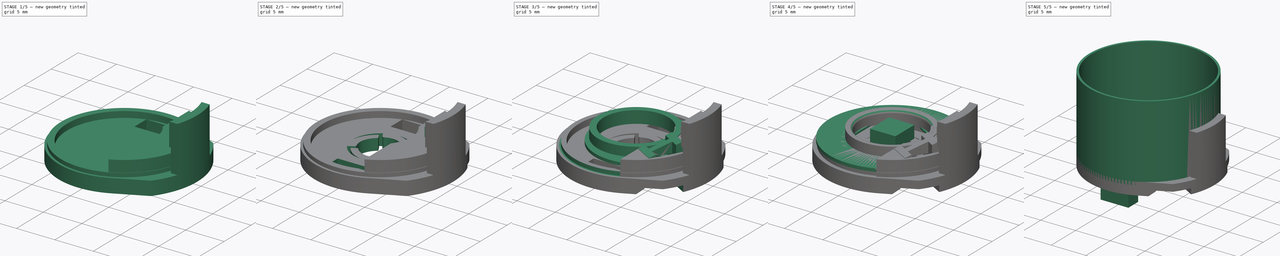
[diagram: build sequence overview — one tinted view per stage of 5, left to right]
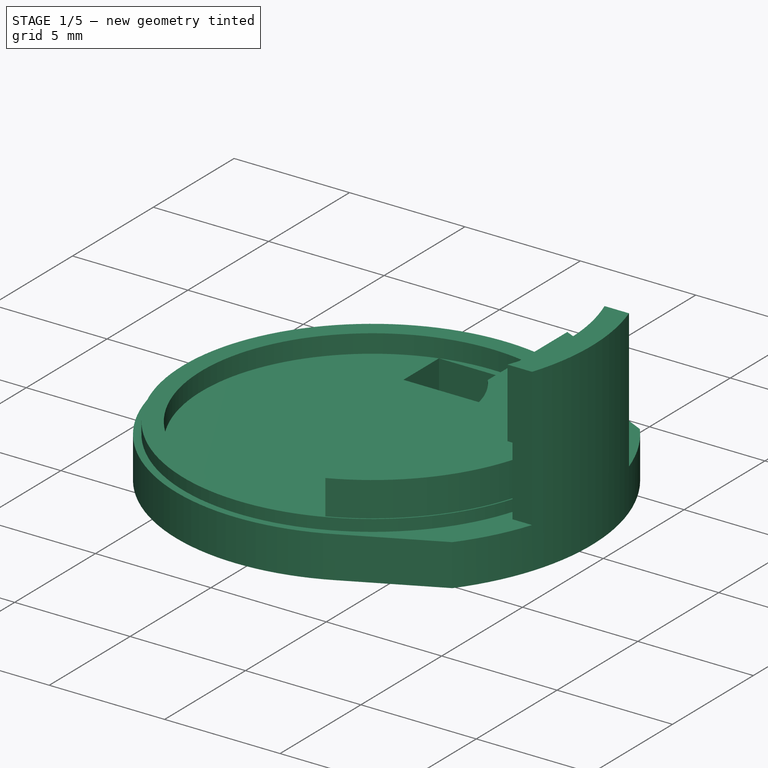
[diagram: stage 1 of 5 — iso view after this stage's code; geometry added in this stage tinted green]
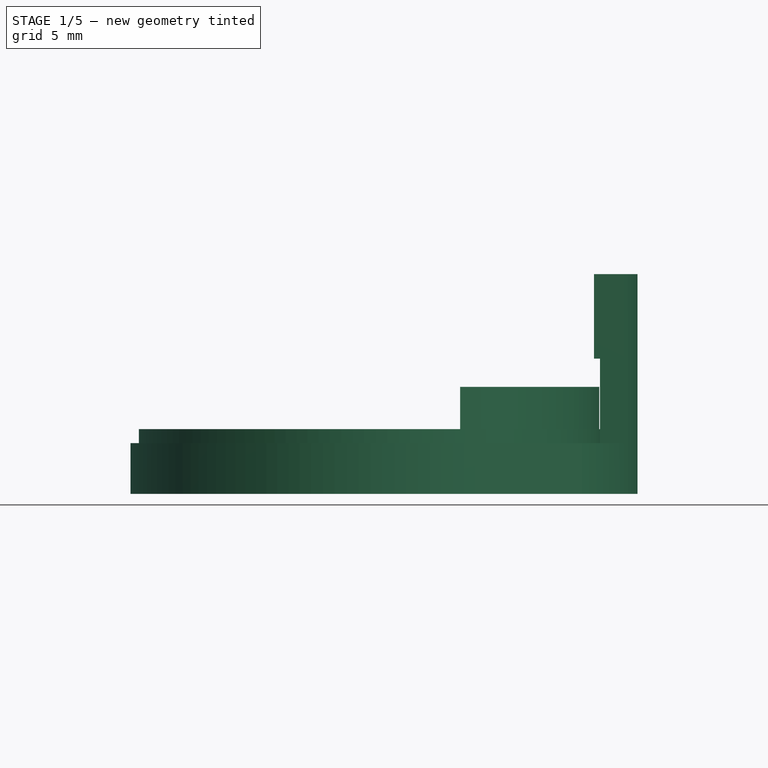
[diagram: stage 1 of 5 — front view after this stage's code; geometry added in this stage tinted green]
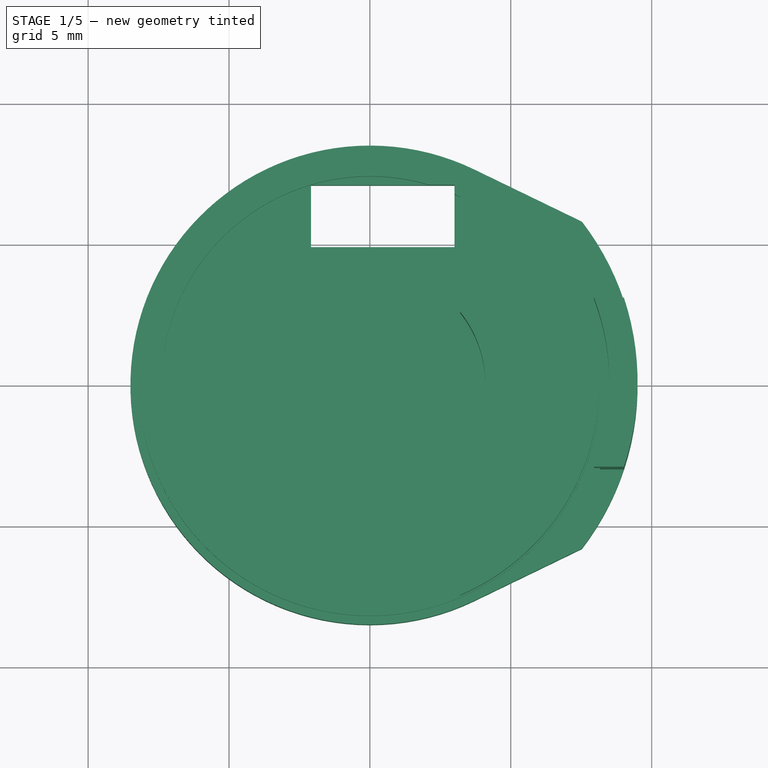
[diagram: stage 1 of 5 — top view after this stage's code; geometry added in this stage tinted green]
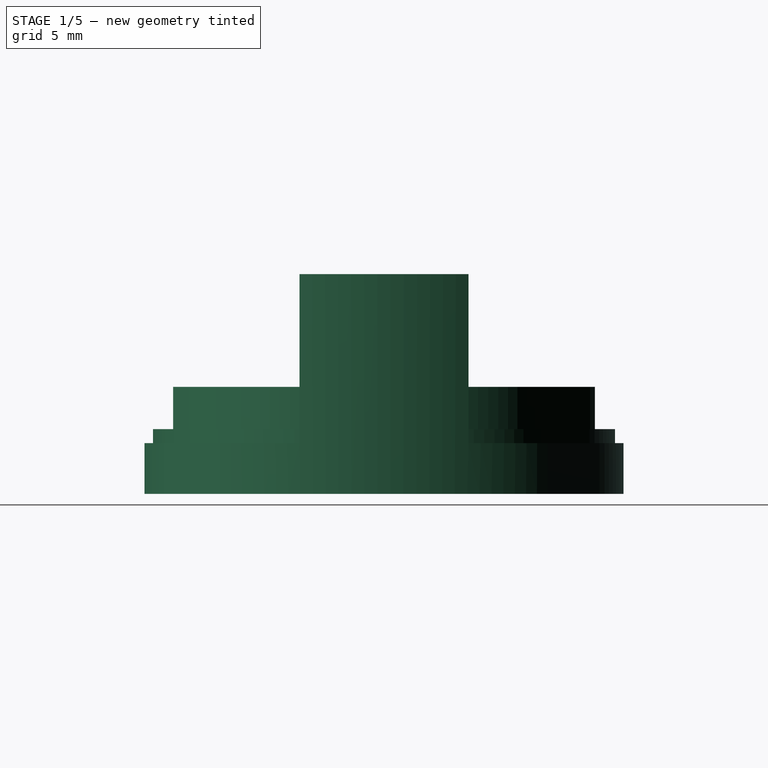
[diagram: stage 1 of 5 — right view after this stage's code; geometry added in this stage tinted green]
FCSTD DOCUMENT  (FreeCAD 0.21R)
Label: motor
License: All rights reserved
LicenseURL: http://en.wikipedia.org/wiki/All_rights_reserved
objects: Sketcher::SketchObject×28, PartDesign::Pad×19, PartDesign::Body×7, PartDesign::Pocket×6, PartDesign::Fillet×3, PartDesign::PolarPattern×2, PartDesign::Mirrored×2, PartDesign::Plane×1, PartDesign::SubtractiveLoft×1, PartDesign::MultiTransform×1
note: 99 computed .brp shape members not serialized (recipe doc carries the construction recipe); baked Part::Feature solids carry a one-line shape summary decoded from their .brp

FEATURE [Sketcher::SketchObject] Sketch051
  FullyConstrained = true
  MapMode = 5
  Support = -> [XY_Plane011]
  sketch-geometry (1):
    g0: Circle CenterX=0 CenterY=0 CenterZ=0 NormalX=0 NormalY=0 NormalZ=1 AngleXU=0 Radius=8.2
  constraints (2):
    c: Diameter(g0) = 16.4
    c: Coincident(g0,g-1)
FEATURE [Sketcher::SketchObject] Sketch063
  FullyConstrained = true
  MapMode = 5
  Support = -> [XY_Plane011]
  sketch-geometry (4):
    g0: LineSegment StartX=-2.09 StartY=7.1 StartZ=0 EndX=3 EndY=7.1 EndZ=0
    g1: LineSegment StartX=3 StartY=7.1 StartZ=0 EndX=3 EndY=4.9 EndZ=0
    g2: LineSegment StartX=3 StartY=4.9 StartZ=0 EndX=-2.09 EndY=4.9 EndZ=0
    g3: LineSegment StartX=-2.09 StartY=4.9 StartZ=0 EndX=-2.09 EndY=7.1 EndZ=0
  constraints (12):
    c: Coincident(g0,g1)
    c: Coincident(g1,g2)
    c: Coincident(g2,g3)
    c: Coincident(g3,g0)
    c: Horizontal(g0)
    c: Horizontal(g2)
    c: Vertical(g1)
    c: DistanceY(g-1,g1) = 4.9
    c: Distance(g1) = 2.2
    c: DistanceX(g-1,g1) = 3
    c: Distance(g0) = 5.09
    c: Vertical(g3)
FEATURE [Sketcher::SketchObject] Sketch064
  FullyConstrained = true
  MapMode = 5
  Support = -> [XY_Plane011]
  sketch-geometry (4):
    g0: ArcOfCircle CenterX=0 CenterY=0 CenterZ=0 NormalX=0 NormalY=0 NormalZ=1 AngleXU=0 Radius=4.1 StartAngle=5.60783 EndAngle=6.95854
    g1: LineSegment StartX=3.2 StartY=6.67788 StartZ=0 EndX=3.2 EndY=2.5632 EndZ=0
    g2: LineSegment StartX=3.2 StartY=-2.5632 StartZ=0 EndX=3.2 EndY=-6.67788 EndZ=0
    g3: ArcOfCircle CenterX=0 CenterY=0 CenterZ=0 NormalX=0 NormalY=0 NormalZ=1 AngleXU=0 Radius=7.405 StartAngle=1.12393 EndAngle=5.15925
  constraints (12):
    c: Coincident(g0,g-1)
    c: Coincident(g1,g0)
    c: Vertical(g1)
    c: Coincident(g2,g0)
    c: Vertical(g2)
    c: Coincident(g3,g0)
    c: Coincident(g3,g1)
    c: Coincident(g3,g2)
    c: Diameter(g3) = 14.81
    c: Radius(g0) = 4.1
    c: Equal(g1,g2)
    c: DistanceX(g0,g1) = 3.2
FEATURE [Sketcher::SketchObject] Sketch056
  ExternalGeometry = -> [Sketch064]
  FullyConstrained = true
  MapMode = 5
  Support = -> [XY_Plane011]
  sketch-geometry (2):
    g0: ArcOfCircle CenterX=0 CenterY=0 CenterZ=0 NormalX=0 NormalY=0 NormalZ=1 AngleXU=0 Radius=8.14 StartAngle=5.11641 EndAngle=7.44996
    g1: LineSegment StartX=3.2 StartY=-7.48462 StartZ=0 EndX=3.2 EndY=7.48462 EndZ=0
  constraints (6):
    c: Coincident(g0,g-1)
    c: Coincident(g1,g0)
    c: Vertical(g1)
    c: Radius(g0) = 8.14
    c: PointOnObject(g0,g-3)
    c: Coincident(g0,g1)
FEATURE [PartDesign::Pad] Pad029
  Direction = (1,1,1)
  Length = 2.3
  Length2 = 100
  Profile = -> Sketch051
  Refine = true
  Reversed = true
  Type = 0
FEATURE [PartDesign::Pad] Pad030
  BaseFeature = -> Pad029
  Direction = (1,1,1)
  Length = 1.5
  Length2 = 100
  Profile = -> Sketch056
  Refine = true
  Type = 0
FEATURE [Sketcher::SketchObject] Sketch060
  ExternalGeometry = -> [Sketch051]
  FullyConstrained = true
  MapMode = 5
  Placement = pos=(0,0,-2.3) rot=(1,0,0;3.14159rad)
  Support = -> [Pad030]
  expr: Constraints[6] = 17.4 + 0.8 * 2
  sketch-geometry (5):
    g0: ArcOfCircle CenterX=0 CenterY=0 CenterZ=0 NormalX=0 NormalY=0 NormalZ=1 AngleXU=0 Radius=8.5 StartAngle=1.11968 EndAngle=5.16351
    g1: Circle CenterX=0 CenterY=0 CenterZ=0 NormalX=0 NormalY=0 NormalZ=1 AngleXU=0 Radius=8.2
    g2: LineSegment StartX=3.70575 StartY=7.64967 StartZ=0 EndX=7.52396 EndY=5.8 EndZ=0
    g3: LineSegment StartX=3.70575 StartY=-7.64967 StartZ=0 EndX=7.52396 EndY=-5.8 EndZ=0
    g4: ArcOfCircle CenterX=0 CenterY=0 CenterZ=0 NormalX=0 NormalY=0 NormalZ=1 AngleXU=0 Radius=9.5 StartAngle=5.62646 EndAngle=6.93991
  constraints (12):
    c: Diameter(g0) = 17
    c: Coincident(g0,g-1)
    c: Coincident(g1,g0)
    c: Coincident(g4,g0)
    c: Coincident(g4,g2)
    c: Coincident(g4,g3)
    c: Diameter(g4) = 19
    c: Symmetric(g3,g2,g-1)
    c: Tangent(g2,g0) = 1.5708
    c: Tangent(g3,g0) = -1.5708
    c: Equal(g-3,g1)
    c: Distance(g2,g3) = 11.6
FEATURE [Sketcher::SketchObject] Sketch067
  FullyConstrained = true
  MapMode = 5
  Placement = pos=(0,0,1.5) rot=(0,0,1;0rad)
  Support = -> [Pad030]
  sketch-geometry (12):
    g0: LineSegment StartX=5.14554 StartY=4.435 StartZ=0 EndX=5.96827 EndY=4.91 EndZ=0
    g1: LineSegment StartX=5.96827 StartY=4.91 StartZ=0 EndX=5.56827 EndY=5.60282 EndZ=0
    g2: LineSegment StartX=5.56827 StartY=5.60282 StartZ=0 EndX=3.23 EndY=4.25282 EndZ=0
    g3: LineSegment StartX=3.23 StartY=4.25282 StartZ=0 EndX=3.63 EndY=3.56 EndZ=0
    g4: LineSegment StartX=3.63 StartY=3.56 StartZ=0 EndX=4.45272 EndY=4.035 EndZ=0
    g5: LineSegment StartX=4.45272 StartY=4.035 StartZ=0 EndX=5.65272 EndY=1.95654 EndZ=0
    g6: LineSegment StartX=5.65272 StartY=1.95654 StartZ=0 EndX=4.83 EndY=1.48154 EndZ=0
    g7: LineSegment StartX=4.83 StartY=1.48154 StartZ=0 EndX=5.23 EndY=0.788719 EndZ=0
    g8: LineSegment StartX=5.23 StartY=0.788719 StartZ=0 EndX=7.56827 EndY=2.13872 EndZ=0
    g9: LineSegment StartX=7.56827 StartY=2.13872 StartZ=0 EndX=7.16827 EndY=2.83154 EndZ=0
    g10: LineSegment StartX=7.16827 StartY=2.83154 StartZ=0 EndX=6.34554 EndY=2.35654 EndZ=0
    g11: LineSegment StartX=6.34554 StartY=2.35654 StartZ=0 EndX=5.14554 EndY=4.435 EndZ=0
  constraints (36):
    c: Coincident(g0,g1)
    c: Coincident(g1,g2)
    c: Coincident(g2,g3)
    c: Coincident(g3,g4)
    c: Coincident(g4,g5)
    c: Coincident(g5,g6)
    c: Coincident(g6,g7)
    c: Coincident(g7,g8)
    c: Coincident(g8,g9)
    c: Coincident(g9,g10)
    c: Coincident(g10,g11)
    c: Coincident(g11,g0)
    c: Perpendicular(g11,g10)
    c: Parallel(g10,g6)
    c: Parallel(g6,g4)
    c: Parallel(g4,g0)
    c: Parallel(g2,g8)
    c: Parallel(g8,g10)
    c: Parallel(g9,g11)
    c: Parallel(g11,g1)
    c: Parallel(g1,g3)
    c: Parallel(g3,g7)
    c: Equal(g0,g10)
    c: Equal(g1,g9)
    c: Equal(g6,g4)
    c: Equal(g10,g6)
    c: Distance(g8) = 2.7
    c: Distance(g9) = 0.8
    c: Distance(g11) = 2.4
    c: Angle(g8) = 0.523599
    c: Parallel(g11,g5)
    c: Equal(g3,g7)
    c: Equal(g3,g1)
    c: DistanceX(g3) = 3.63
    c: DistanceY(g3) = 3.56
    c: Distance(g0,g4) = 0.8
FEATURE [PartDesign::Pad] Pad031
  BaseFeature = -> Pad030
  Direction = (1,1,1)
  Length = 1.8
  Length2 = 100
  Profile = -> Sketch060
  Refine = true
  Reversed = true
  Type = 0
FEATURE [Sketcher::SketchObject] Sketch061
  ExternalGeometry = -> [Sketch060]
  FullyConstrained = true
  MapMode = 5
  Placement = pos=(0,0,-0.5) rot=(0,0,1;0rad)
  Support = -> [Pad031]
  sketch-geometry (4):
    g0: ArcOfCircle CenterX=0 CenterY=0 CenterZ=0 NormalX=0 NormalY=0 NormalZ=1 AngleXU=0 Radius=9.5 StartAngle=5.9619 EndAngle=6.60447
    g1: ArcOfCircle CenterX=0 CenterY=0 CenterZ=0 NormalX=0 NormalY=0 NormalZ=1 AngleXU=0 Radius=8.7 StartAngle=5.93113 EndAngle=6.63524
    g2: LineSegment StartX=8.16639 StartY=3 StartZ=0 EndX=9.01388 EndY=3 EndZ=0
    g3: LineSegment StartX=8.16639 StartY=-3 StartZ=0 EndX=9.01388 EndY=-3 EndZ=0
  constraints (12):
    c: Coincident(g1,g0)
    c: Coincident(g2,g1)
    c: Coincident(g2,g0)
    c: Horizontal(g2)
    c: Coincident(g3,g1)
    c: Coincident(g3,g0)
    c: Horizontal(g3)
    c: Diameter(g1) = 17.4
    c: Coincident(g0,g-1)
    c: Symmetric(g1,g1,g-1)
    c: Distance(g0,g0) = 6
    c: PointOnObject(g0,g-3)
FEATURE [PartDesign::Pad] Pad032
  BaseFeature = -> Pad031
  Direction = (0,0,1)
  Length = 3
  Length2 = 100
  Profile = -> Sketch061
  ReferenceAxis = -> Sketch061 [N_Axis]
  Refine = true
  Type = 0
FEATURE [Sketcher::SketchObject] Sketch065
  ExternalGeometry = -> [Sketch061]
  FullyConstrained = true
  MapMode = 5
  Placement = pos=(0,0,2.5) rot=(0,0,1;0rad)
  Support = -> [Pad032]
  sketch-geometry (4):
    g0: ArcOfCircle CenterX=0 CenterY=0 CenterZ=0 NormalX=0 NormalY=0 NormalZ=1 AngleXU=0 Radius=8.5 StartAngle=5.92247 EndAngle=6.6439
    g1: ArcOfCircle CenterX=-9e-16 CenterY=-1.6e-15 CenterZ=0 NormalX=0 NormalY=0 NormalZ=1 AngleXU=0 Radius=9.5 StartAngle=5.9619 EndAngle=6.60447
    g2: LineSegment StartX=7.95299 StartY=3 StartZ=0 EndX=9.01388 EndY=3 EndZ=0
    g3: LineSegment StartX=7.95299 StartY=-3 StartZ=0 EndX=9.01388 EndY=-3 EndZ=0
  constraints (11):
    c: Coincident(g0,g-1)
    c: Coincident(g2,g0)
    c: Coincident(g2,g1)
    c: Coincident(g3,g0)
    c: Coincident(g3,g1)
    c: Horizontal(g3)
    c: Horizontal(g2)
    c: Diameter(g0) = 17
    c: Coincident(g-3,g1)
    c: Coincident(g-3,g1)
    c: Equal(g-3,g1)
FEATURE [PartDesign::Pad] Pad033
  BaseFeature = -> Pad032
  Direction = (0,0,1)
  Length = 3
  Length2 = 100
  Profile = -> Sketch065
  ReferenceAxis = -> Sketch065 [N_Axis]
  Refine = true
  Type = 0
FEATURE [PartDesign::Pocket] Pocket009
  BaseFeature = -> Pad033
  Direction = (0,0,-1)
  Length = 5
  Length2 = 100
  Profile = -> Sketch063
  Refine = true
  Type = 1
FEATURE [PartDesign::Pocket] Pocket010
  BaseFeature = -> Pocket009
  Direction = (0,0,-1)
  Length = 0.8
  Length2 = 100
  Profile = -> Sketch064
  ReferenceAxis = -> Sketch064 [N_Axis]
  Refine = true
  Type = 4
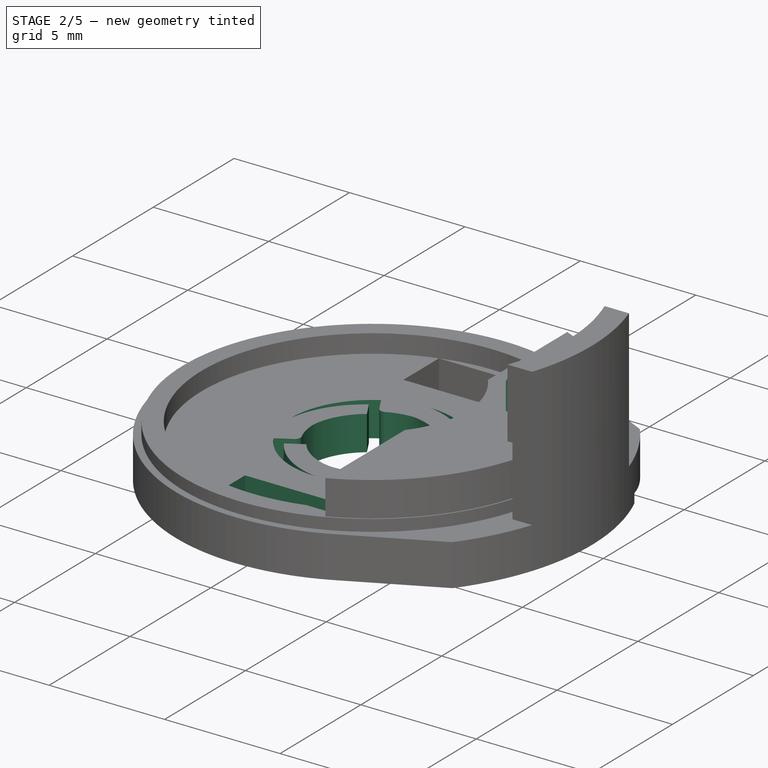
[diagram: stage 2 of 5 — iso view after this stage's code; geometry added in this stage tinted green]
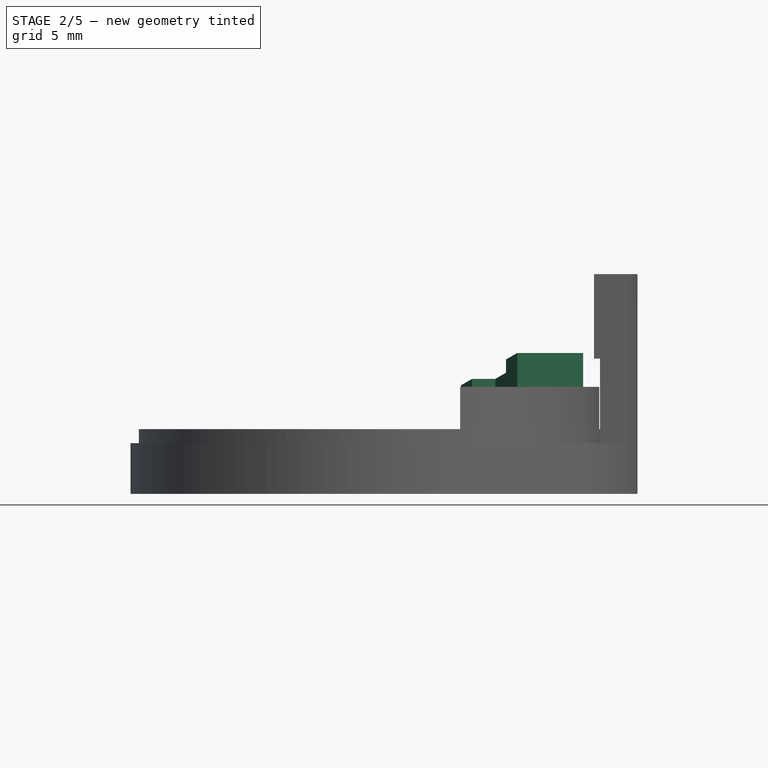
[diagram: stage 2 of 5 — front view after this stage's code; geometry added in this stage tinted green]
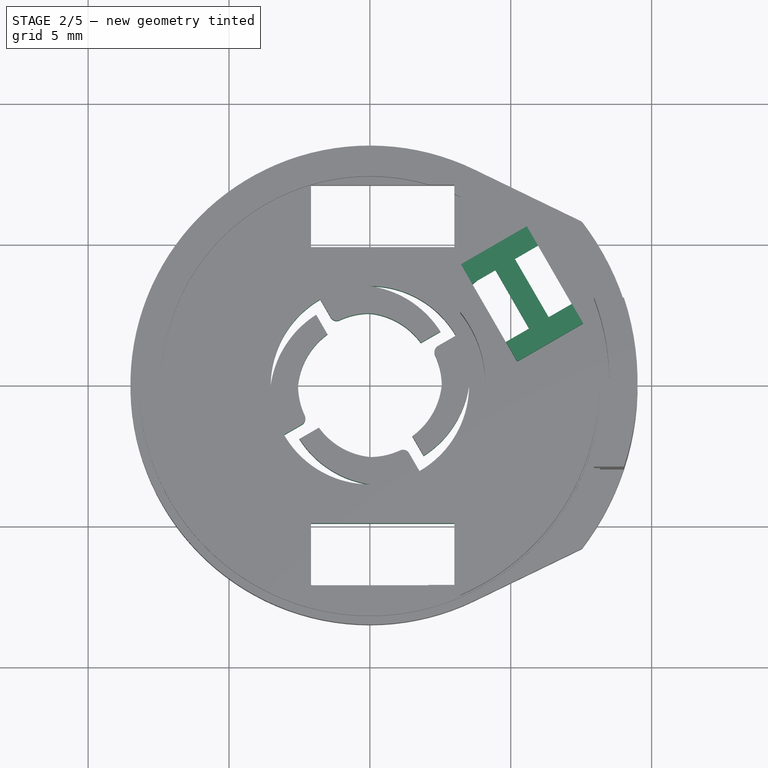
[diagram: stage 2 of 5 — top view after this stage's code; geometry added in this stage tinted green]
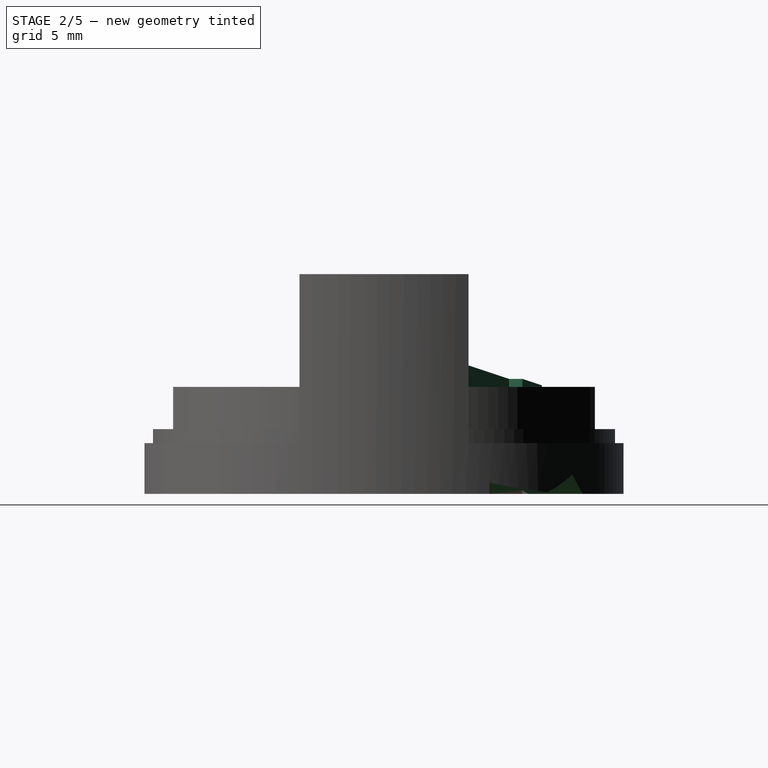
[diagram: stage 2 of 5 — right view after this stage's code; geometry added in this stage tinted green]
FEATURE [Sketcher::SketchObject] Sketch062
  FullyConstrained = true
  MapMode = 5
  Placement = pos=(0,0,-2.3) rot=(1,0,0;3.14159rad)
  Support = -> [Pocket010]
  expr: Constraints[27] = 5.1 / 2
  sketch-geometry (11):
    g0: ArcOfCircle CenterX=2e-16 CenterY=0 CenterZ=0 NormalX=0 NormalY=0 NormalZ=1 AngleXU=0 Radius=3.52 StartAngle=0 EndAngle=1.0472
    g1: ArcOfCircle CenterX=0 CenterY=-0.498801 CenterZ=0 NormalX=0 NormalY=0 NormalZ=1 AngleXU=0 Radius=3.55517 StartAngle=0.140768 EndAngle=1.00482
    g2: LineSegment StartX=2e-16 StartY=0 StartZ=0 EndX=1.76 EndY=3.04841 EndZ=0
    g3: LineSegment StartX=1.90641 StartY=2.502 StartZ=0 EndX=1.56 EndY=2.702 EndZ=0
    g4: LineSegment StartX=1.76 StartY=3.04841 StartZ=0 EndX=1.39441 EndY=2.41519 EndZ=0
    g5: LineSegment StartX=2e-16 StartY=0 StartZ=0 EndX=2e-16 EndY=2.55 EndZ=0
    g6: ArcOfCircle CenterX=2e-16 CenterY=0 CenterZ=0 NormalX=0 NormalY=0 NormalZ=1 AngleXU=0 Radius=2.55 StartAngle=1.1366 EndAngle=1.5708
    g7: ArcOfCircle CenterX=1.1779 CenterY=2.54019 CenterZ=0 NormalX=0 NormalY=0 NormalZ=1 AngleXU=0 Radius=0.25 StartAngle=4.27819 EndAngle=5.75959
    g8: LineSegment StartX=1.90641 StartY=2.502 StartZ=0 EndX=1.50641 EndY=1.80918 EndZ=0
    g9: ArcOfCircle CenterX=0 CenterY=-0.265341 CenterZ=0 NormalX=0 NormalY=0 NormalZ=1 AngleXU=0 Radius=2.56377 StartAngle=0.103682 EndAngle=0.942736
    g10: LineSegment StartX=2.55 StartY=1.70901e-11 StartZ=0 EndX=0 EndY=0 EndZ=0
  constraints (32):
    c: PointOnObject(g0,g-1)
    c: Coincident(g2,g0)
    c: Coincident(g2,g0)
    c: Coincident(g-1,g0)
    c: Coincident(g3,g1)
    c: PointOnObject(g3,g2)
    c: Perpendicular(g2,g3)
    c: Distance(g3) = 0.4
    c: Coincident(g4,g0)
    c: Coincident(g5,g0)
    c: Vertical(g5)
    c: Coincident(g6,g0)
    c: Coincident(g6,g5)
    c: Diameter(g6) = 5.1
    c: Tangent(g4,g7) = 1.5708
    c: Tangent(g6,g7) = 1.5708
    c: Diameter(g7) = 0.5
    c: Angle(g-1,g2) = 1.0472
    c: PointOnObject(g4,g2)
    c: Distance(g3,g0) = 0.4
    c: Coincident(g1,g0)
    c: Coincident(g8,g1)
    c: Parallel(g8,g2)
    c: Coincident(g9,g8)
    c: PointOnObject(g9,g-1)
    c: Coincident(g10,g9)
    c: Coincident(g10,g0)
    c: Distance(g10) = 2.55
    c: PointOnObject(g9,g-2)
    c: PointOnObject(g1,g-2)
    c: Distance(g8) = 0.8
    c: Radius(g0) = 3.52
FEATURE [PartDesign::Pocket] Pocket011
  BaseFeature = -> Pocket010
  Direction = (0,0,1)
  Length = 5
  Length2 = 100
  Profile = -> Sketch062
  Refine = true
  Type = 1
FEATURE [PartDesign::PolarPattern] PolarPattern001
  Angle = 360
  Axis = -> Sketch062 [N_Axis]
  BaseFeature = -> Pocket011
  Occurrences = 4
  Originals = -> [Pocket011]
  Refine = true
FEATURE [PartDesign::Mirrored] Mirrored008
  BaseFeature = -> PolarPattern001
  MirrorPlane = -> Sketch063 [H_Axis]
  Originals = -> [Pocket009]
  Refine = true
FEATURE [Sketcher::SketchObject] Sketch055
  ExternalGeometry = -> [Sketch067]
  FullyConstrained = true
  MapMode = 5
  Placement = pos=(0,0,-2.3) rot=(1,0,0;3.14159rad)
  Support = -> [Mirrored008]
  sketch-geometry (9):
    g0: LineSegment StartX=3.82132 StartY=-1.7 StartZ=0 EndX=7.78112 EndY=-5.6598 EndZ=0
    g1: LineSegment StartX=7.78112 StartY=-5.6598 StartZ=0 EndX=5.6598 EndY=-7.78112 EndZ=0
    g2: LineSegment StartX=5.6598 StartY=-7.78112 StartZ=0 EndX=1.7 EndY=-3.82132 EndZ=0
    g3: LineSegment StartX=1.7 StartY=-3.82132 StartZ=0 EndX=3.82132 EndY=-1.7 EndZ=0
    g4: LineSegment StartX=6.72046 StartY=-6.72046 StartZ=0 EndX=0 EndY=0 EndZ=0
    g5: LineSegment StartX=1.7 StartY=-3.82132 StartZ=0 EndX=4.32902 EndY=-1.1923 EndZ=0
    g6: LineSegment StartX=4.32902 StartY=-1.1923 StartZ=0 EndX=9.34984 EndY=-4.09107 EndZ=0
    g7: LineSegment StartX=9.34984 StartY=-4.09107 StartZ=0 EndX=5.6598 EndY=-7.78112 EndZ=0
    g8: LineSegment StartX=1.7 StartY=-3.82132 StartZ=0 EndX=5.6598 EndY=-7.78112 EndZ=0
  constraints (25):
    c: Coincident(g0,g1)
    c: Coincident(g1,g2)
    c: Coincident(g2,g3)
    c: Coincident(g3,g0)
    c: Perpendicular(g1,g0)
    c: Parallel(g0,g2)
    c: Parallel(g3,g1)
    c: PointOnObject(g4,g1)
    c: Coincident(g4,g-1)
    c: Symmetric(g0,g1,g4)
    c: Distance(g1) = 3
    c: Distance(g2) = 5.6
    c: Angle(g-1,g4) = -0.785398
    c: DistanceX(g-1,g2) = 1.7
    c: Coincident(g5,g2)
    c: Coincident(g6,g5)
    c: Coincident(g7,g6)
    c: Coincident(g8,g5)
    c: Coincident(g8,g7)
    c: Parallel(g2,g8)
    c: Parallel(g3,g5)
    c: Parallel(g6,g-3)
    c: PointOnObject(g-3,g6)
    c: PointOnObject(g0,g7)
    c: Parallel(g1,g7)
FEATURE [Sketcher::SketchObject] Sketch069
  ExternalGeometry = -> [Sketch067]
  FullyConstrained = true
  MapMode = 5
  Placement = pos=(0,0,1.5) rot=(0,0,1;0rad)
  Support = -> [Mirrored008]
  sketch-geometry (4):
    g0: LineSegment StartX=3.63 StartY=3.56 StartZ=0 EndX=5.96827 EndY=4.91 EndZ=0
    g1: LineSegment StartX=5.96827 StartY=4.91 StartZ=0 EndX=7.16827 EndY=2.83154 EndZ=0
    g2: LineSegment StartX=7.16827 StartY=2.83154 StartZ=0 EndX=4.83 EndY=1.48154 EndZ=0
    g3: LineSegment StartX=4.83 StartY=1.48154 StartZ=0 EndX=3.63 EndY=3.56 EndZ=0
  constraints (10):
    c: Coincident(g-3,g0)
    c: Coincident(g0,g1)
    c: Coincident(g1,g-4)
    c: Coincident(g1,g2)
    c: Coincident(g2,g3)
    c: Coincident(g3,g0)
    c: Perpendicular(g0,g1)
    c: Parallel(g0,g2)
    c: Parallel(g3,g1)
    c: PointOnObject(g-3,g0)
FEATURE [PartDesign::Plane] DatumPlane
  AttachmentOffset = pos=(0,0,-1) rot=(0,0,1;0rad)
  Length = 60
  MapMode = 5
  Placement = pos=(0,0,-1) rot=(0,0,1;0rad)
  ResizeMode = 0
  Support = -> [XY_Plane011]
  Width = 60
FEATURE [Sketcher::SketchObject] Sketch070
  ExternalGeometry = -> [Sketch069,Sketch055]
  FullyConstrained = false
  MapMode = 5
  Placement = pos=(0,0,-1) rot=(0,0,1;0rad)
  Support = -> [DatumPlane]
  sketch-geometry (4):
    g0: LineSegment StartX=3.63 StartY=3.56 StartZ=0 EndX=5.7687 EndY=5.6987 EndZ=0
    g1: LineSegment StartX=5.7687 StartY=5.6987 StartZ=0 EndX=7.36011 EndY=2.9423 EndZ=0
    g2: LineSegment StartX=7.36011 StartY=2.9423 StartZ=0 EndX=4.67543 EndY=1.3923 EndZ=0
    g3: LineSegment StartX=4.67543 StartY=1.3923 StartZ=0 EndX=3.63 EndY=3.56 EndZ=0
  constraints (5):
    c: Coincident(g0,g1)
    c: Coincident(g1,g2)
    c: Coincident(g2,g3)
    c: Coincident(g3,g0)
    c: Distance(g2) = 3.1
FEATURE [PartDesign::SubtractiveLoft] SubtractiveLoft
  BaseFeature = -> Mirrored008
  Closed = false
  Profile = -> Sketch055
  Refine = true
  Ruled = true
  Sections = -> [Sketch070,Sketch069]
FEATURE [PartDesign::Pad] Pad034
  BaseFeature = -> SubtractiveLoft
  Direction = (0,0,1)
  Length = 1.2
  Length2 = 100
  Profile = -> Sketch067
  Refine = true
  Type = 0
FEATURE [Sketcher::SketchObject] Sketch068
  ExternalGeometry = -> [Pad034]
  FullyConstrained = true
  MapMode = 5
  Placement = pos=(6.60229,3.81184,0) rot=(0.377964,0.654654,0.654654;2.41886rad)
  Support = -> [Pad034]
  sketch-geometry (3):
    g0: LineSegment StartX=-1.93195 StartY=2.7 StartZ=0 EndX=2.06805 EndY=2.7 EndZ=0
    g1: LineSegment StartX=2.06805 StartY=2.7 StartZ=0 EndX=2.06805 EndY=1.55302 EndZ=0
    g2: LineSegment StartX=2.06805 StartY=1.55302 StartZ=0 EndX=-1.93195 EndY=2.7 EndZ=0
  constraints (7):
    c: Coincident(g0,g1)
    c: Vertical(g1)
    c: Coincident(g1,g2)
    c: Coincident(g2,g0)
    c: Angle(g2,g0) = 0.279253
    c: Coincident(g-3,g0)
    c: Coincident(g-4,g0)
FEATURE [PartDesign::Pocket] Pocket012
  BaseFeature = -> Pad034
  Direction = (-0.866025,-0.5,0)
  Length = 5
  Length2 = 100
  Profile = -> Sketch068
  Refine = true
  Type = 1
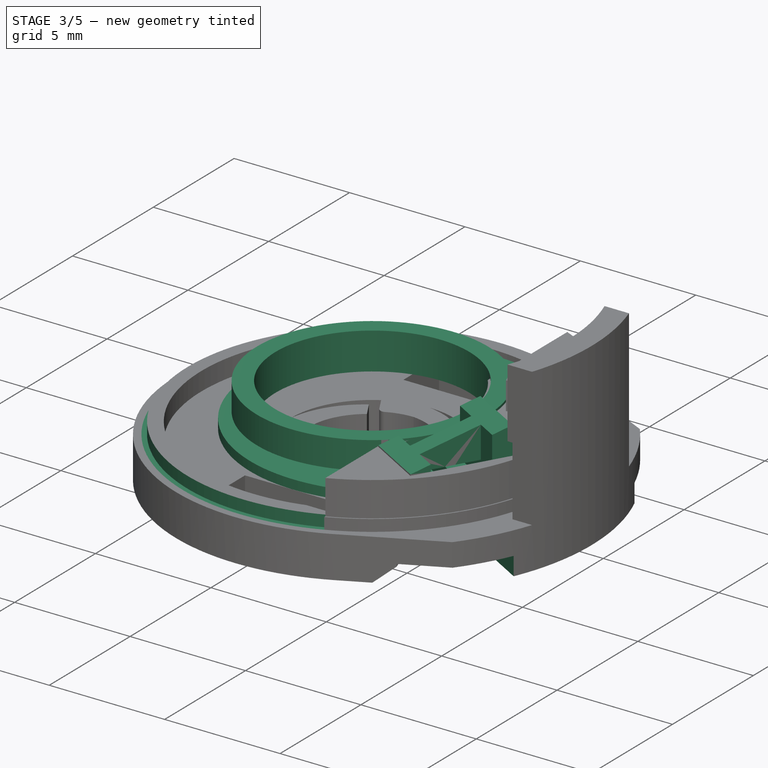
[diagram: stage 3 of 5 — iso view after this stage's code; geometry added in this stage tinted green]
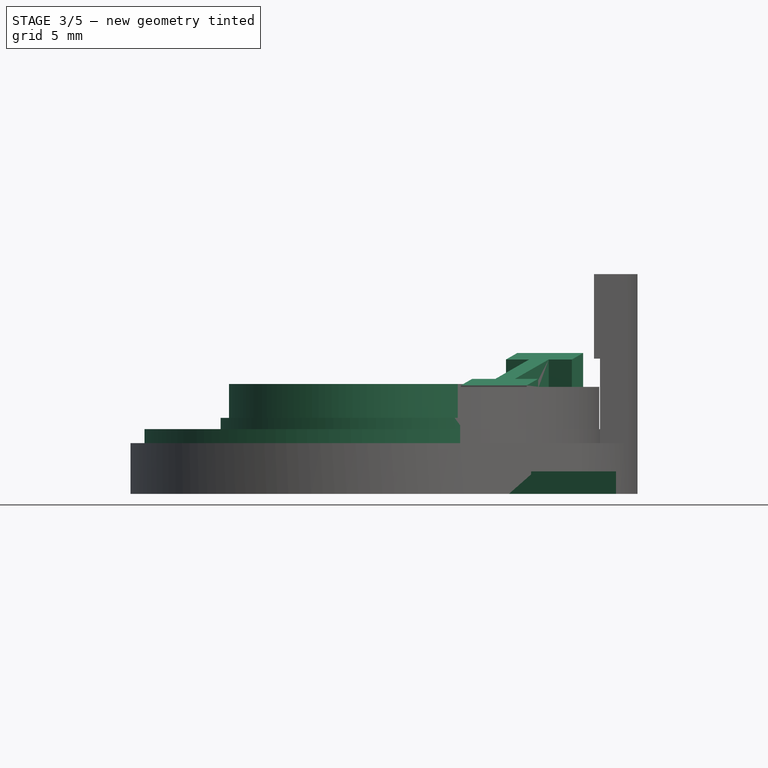
[diagram: stage 3 of 5 — front view after this stage's code; geometry added in this stage tinted green]
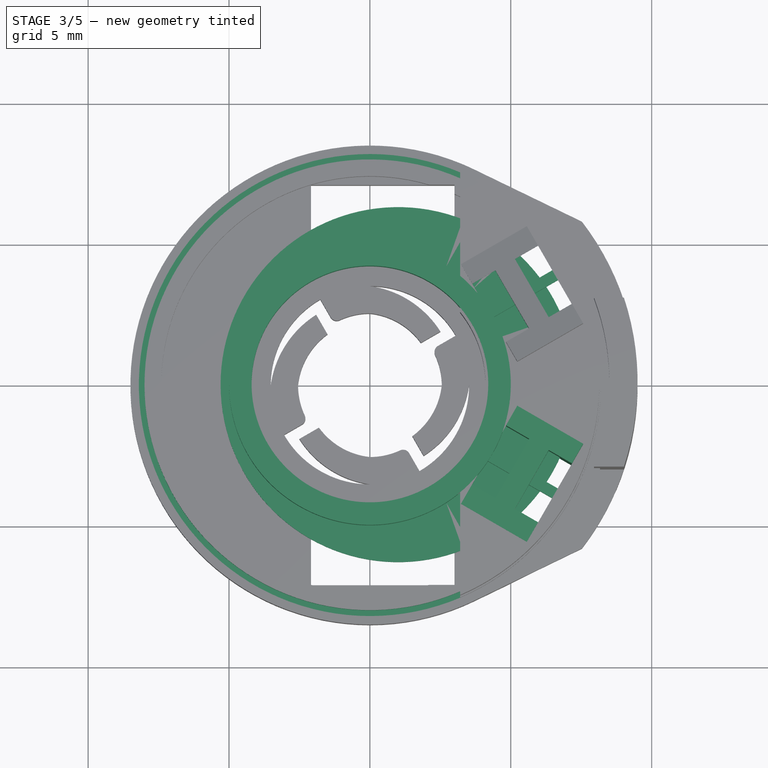
[diagram: stage 3 of 5 — top view after this stage's code; geometry added in this stage tinted green]
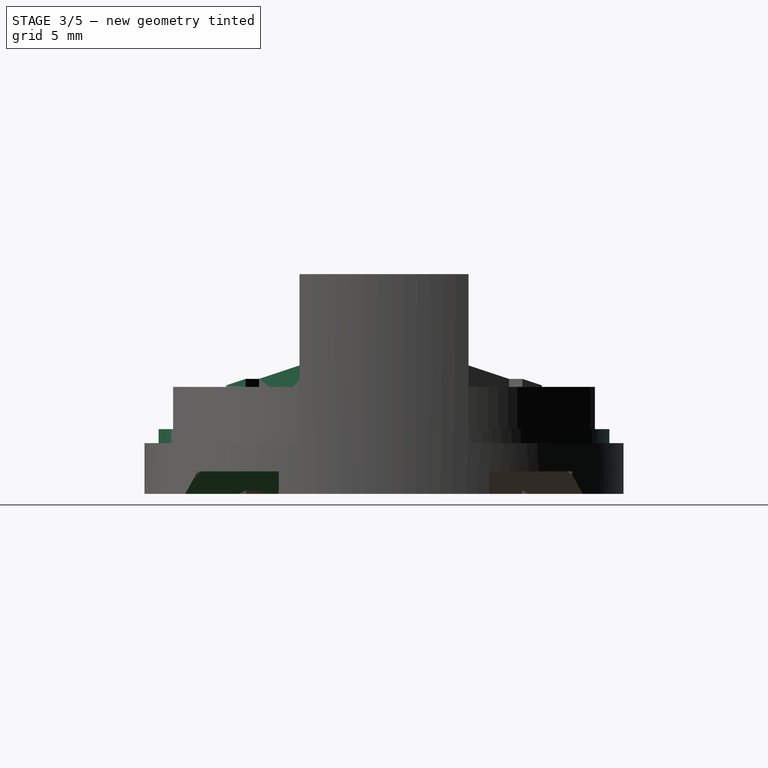
[diagram: stage 3 of 5 — right view after this stage's code; geometry added in this stage tinted green]
FEATURE [PartDesign::Body] Body007  label="sensor2"
  Group = -> [Sketch021,Pad012]
  Origin = -> Origin007
  Placement = pos=(5.41059,-3.18673,1.53188) rot=(0.460934,-0.123507,-0.878798;0.5919rad)
  Tip = -> Pad012
FEATURE [Sketcher::SketchObject] Sketch044
  FullyConstrained = true
  MapMode = 5
  Support = -> [XY_Plane009]
  expr: Constraints[6] = 7.3mm
  sketch-geometry (3):
    g0: Circle CenterX=0 CenterY=0 CenterZ=0 NormalX=0 NormalY=0 NormalZ=1 AngleXU=0 Radius=4.2
    g1: Circle CenterX=1 CenterY=0 CenterZ=0 NormalX=0 NormalY=0 NormalZ=1 AngleXU=0 Radius=6.3
    g2: GeomPoint X=7.3 Y=0 Z=0
  constraints (8):
    c: Coincident(g0,g-1)
    c: PointOnObject(g1,g-1)
    c: Diameter(g0) = 8.4
    c: Diameter(g1) = 12.6
    c: PointOnObject(g2,g1)
    c: PointOnObject(g2,g-1)
    c: Distance(g2,g0) = 7.3
    c: Distance(g0,g1) = 1
FEATURE [PartDesign::Pad] Pad022
  Direction = (0,0,1)
  Length = 0.4
  Length2 = 100
  Profile = -> Sketch044
  ReferenceAxis = -> Sketch044 [N_Axis]
  Refine = true
  Type = 0
FEATURE [PartDesign::Body] Body010  label="EncoderDiscBlack"
  Group = -> [Sketch048,Pad026]
  Origin = -> Origin010
  Placement = pos=(0,0,6) rot=(0,0,1;2.67035rad)
  Tip = -> Pad026
FEATURE [Sketcher::SketchObject] Sketch049
  ExternalGeometry = -> [Sketch044]
  FullyConstrained = true
  MapMode = 5
  Placement = pos=(0,0,0.4) rot=(0,0,1;0rad)
  Support = -> [Pad022]
  sketch-geometry (3):
    g0: Circle CenterX=0 CenterY=0 CenterZ=0 NormalX=0 NormalY=0 NormalZ=1 AngleXU=0 Radius=4.2
    g1: Circle CenterX=0 CenterY=0 CenterZ=0 NormalX=0 NormalY=0 NormalZ=1 AngleXU=0 Radius=5
    g2: LineSegment StartX=4.2 StartY=0 StartZ=0 EndX=5 EndY=0 EndZ=0
  constraints (8):
    c: Coincident(g0,g-1)
    c: Coincident(g1,g0)
    c: Equal(g0,g-3)
    c: PointOnObject(g2,g0)
    c: PointOnObject(g2,g1)
    c: PointOnObject(g2,g-1)
    c: Horizontal(g2)
    c: Distance(g2) = 0.8
FEATURE [PartDesign::Pad] Pad027
  BaseFeature = -> Pad022
  Direction = (0,0,1)
  Length = 1.2
  Length2 = 100
  Profile = -> Sketch049
  ReferenceAxis = -> Sketch049 [N_Axis]
  Refine = true
  Type = 0
FEATURE [Sketcher::SketchObject] Sketch071
  ExternalGeometry = -> [Pocket012]
  FullyConstrained = true
  MapMode = 5
  Placement = pos=(0,0,1.5) rot=(1,0,0;3.14159rad)
  Support = -> [Pocket012]
  sketch-geometry (4):
    g0: LineSegment StartX=5.75272 StartY=-1.78333 StartZ=0 EndX=4.35272 EndY=-4.20821 EndZ=0
    g1: LineSegment StartX=4.35272 StartY=-4.20821 StartZ=0 EndX=5.04554 EndY=-4.60821 EndZ=0
    g2: LineSegment StartX=5.04554 StartY=-4.60821 StartZ=0 EndX=6.44554 EndY=-2.18333 EndZ=0
    g3: LineSegment StartX=6.44554 StartY=-2.18333 StartZ=0 EndX=5.75272 EndY=-1.78333 EndZ=0
  constraints (12):
    c: Coincident(g0,g1)
    c: Coincident(g1,g2)
    c: Coincident(g2,g3)
    c: Coincident(g3,g0)
    c: PointOnObject(g-3,g0)
    c: PointOnObject(g-3,g0)
    c: PointOnObject(g-4,g2)
    c: PointOnObject(g-4,g2)
    c: Perpendicular(g2,g3)
    c: Perpendicular(g2,g1)
    c: Distance(g-4,g2) = 0.2
    c: Distance(g-4,g1) = 0.2
FEATURE [PartDesign::Pad] Pad035
  BaseFeature = -> Pocket012
  Direction = (0,0,-1)
  Length = 0.4
  Length2 = 100
  Profile = -> Sketch071
  Refine = true
  Type = 0
FEATURE [Sketcher::SketchObject] Sketch072
  ExternalGeometry = -> [Sketch067]
  FullyConstrained = true
  MapMode = 5
  Placement = pos=(0,0,1.1) rot=(1,0,0;3.14159rad)
  Support = -> [Pad035]
  sketch-geometry (5):
    g0: LineSegment StartX=4.2001 StartY=-2.27256 StartZ=0 EndX=6.79817 EndY=-3.77256 EndZ=0
    g1: LineSegment StartX=6.79817 StartY=-3.77256 StartZ=0 EndX=6.59817 EndY=-4.11897 EndZ=0
    g2: LineSegment StartX=6.59817 StartY=-4.11897 StartZ=0 EndX=4.0001 EndY=-2.61897 EndZ=0
    g3: LineSegment StartX=4.0001 StartY=-2.61897 StartZ=0 EndX=4.2001 EndY=-2.27256 EndZ=0
    g4: LineSegment StartX=4.2001 StartY=-2.27256 StartZ=0 EndX=5.15272 EndY=-2.82256 EndZ=0
  constraints (15):
    c: Coincident(g0,g1)
    c: Coincident(g1,g2)
    c: Coincident(g2,g3)
    c: Coincident(g3,g0)
    c: Parallel(g2,g0)
    c: Parallel(g1,g3)
    c: Parallel(g3,g-3)
    c: Coincident(g4,g0)
    c: PointOnObject(g4,g-3)
    c: Parallel(g4,g0)
    c: Perpendicular(g3,g0)
    c: Distance(g3) = 0.4
    c: Distance(g4,g-3) = 1
    c: Distance(g4) = 1.1
    c: Distance(g2) = 3
FEATURE [PartDesign::Pad] Pad036
  BaseFeature = -> Pad035
  Direction = (0,0,-1)
  Length = 0.6
  Length2 = 100
  Profile = -> Sketch072
  Refine = true
  Type = 0
FEATURE [Sketcher::SketchObject] Sketch073
  ExternalGeometry = -> [Pad036]
  FullyConstrained = true
  MapMode = 5
  Placement = pos=(0,0,-2.3) rot=(1,0,0;3.14159rad)
  Support = -> [Pad036]
  sketch-geometry (4):
    g0: LineSegment StartX=7.36011 StartY=-2.9423 StartZ=0 EndX=9.43857 EndY=-4.1423 EndZ=0
    g1: LineSegment StartX=9.43857 StartY=-4.1423 StartZ=0 EndX=5.64336 EndY=-8.09543 EndZ=0
    g2: LineSegment StartX=5.64336 StartY=-8.09543 StartZ=0 EndX=5.7687 EndY=-5.6987 EndZ=0
    g3: LineSegment StartX=5.7687 StartY=-5.6987 StartZ=0 EndX=7.36011 EndY=-2.9423 EndZ=0
  constraints (10):
    c: Coincident(g0,g1)
    c: Coincident(g1,g2)
    c: Coincident(g2,g3)
    c: Coincident(g3,g0)
    c: PointOnObject(g-4,g2)
    c: Coincident(g0,g-6)
    c: PointOnObject(g-5,g0)
    c: Coincident(g2,g-3)
    c: Equal(g0,g2)
    c: Distance(g0) = 2.4
FEATURE [PartDesign::Pocket] Pocket013
  BaseFeature = -> Pad036
  Direction = (0,0,1)
  Length = 0.8
  Length2 = 100
  Profile = -> Sketch073
  Refine = true
  Type = 0
FEATURE [PartDesign::Mirrored] Mirrored009
  MirrorPlane = -> Sketch055 [H_Axis]
  Refine = true
FEATURE [PartDesign::MultiTransform] MultiTransform001
  BaseFeature = -> Pocket013
  Originals = -> [SubtractiveLoft,Pad034,Pocket012,Pad035,Pad036,Pocket013]
  Refine = true
  Transformations = -> [Mirrored009]
FEATURE [PartDesign::Body] Body009  label="EncoderDiscWhite"
  Group = -> [Sketch044,Pad022,Sketch049,Pad027,Sketch074,Pad037,PolarPattern,Fillet002]
  Origin = -> Origin009
  Placement = pos=(0,0,4) rot=(0,0,1;2.67035rad)
  Tip = -> Fillet002
FEATURE [Sketcher::SketchObject] Sketch075
  FullyConstrained = true
  MapMode = 5
  Support = -> [XY_Plane011]
  sketch-geometry (4):
    g0: ArcOfCircle CenterX=0 CenterY=0 CenterZ=0 NormalX=0 NormalY=0 NormalZ=1 AngleXU=0 Radius=8 StartAngle=1.15928 EndAngle=5.12391
    g1: ArcOfCircle CenterX=0 CenterY=0 CenterZ=0 NormalX=0 NormalY=0 NormalZ=1 AngleXU=0 Radius=9 StartAngle=1.20729 EndAngle=5.0759
    g2: LineSegment StartX=3.2 StartY=8.4119 StartZ=0 EndX=3.2 EndY=7.33212 EndZ=0
    g3: LineSegment StartX=3.2 StartY=-7.33212 StartZ=0 EndX=3.2 EndY=-8.4119 EndZ=0
  constraints (12):
    c: Coincident(g0,g-1)
    c: Coincident(g1,g0)
    c: Coincident(g2,g1)
    c: Coincident(g2,g0)
    c: Coincident(g3,g0)
    c: Coincident(g3,g1)
    c: Vertical(g3)
    c: Vertical(g2)
    c: Diameter(g0) = 16
    c: DistanceX(g0,g0) = 3.2
    c: Diameter(g1) = 18
    c: Vertical(g0,g0)
FEATURE [PartDesign::Pocket] Pocket
  BaseFeature = -> MultiTransform001
  Direction = (0,0,-1)
  Length = 0.5
  Length2 = 5
  Profile = -> Sketch075
  ReferenceAxis = -> Sketch075 [N_Axis]
  Type = 0
FEATURE [PartDesign::Body] Body011  label="MotorLid"
  Group = -> [Sketch051,Sketch055,Sketch056,Sketch060,Sketch061,Sketch062,Sketch063,Sketch064,Sketch065,Sketch067,Sketch068,Pad029,Pad030,Pad031,Pad032,Pad033,Pocket009,Pocket010,Pocket011,PolarPattern001,Mirrored008,Sketch069,DatumPlane,Sketch070,SubtractiveLoft,Pad034,Pocket012,Sketch071,Pad035,Sketch072,Pad036,Sketch073,Pocket013,MultiTransform001,Mirrored009,Sketch075,Pocket]
  Origin = -> Origin011
  Placement = pos=(0,0,-0.6) rot=(0,0,1;0rad)
  Tip = -> Pocket
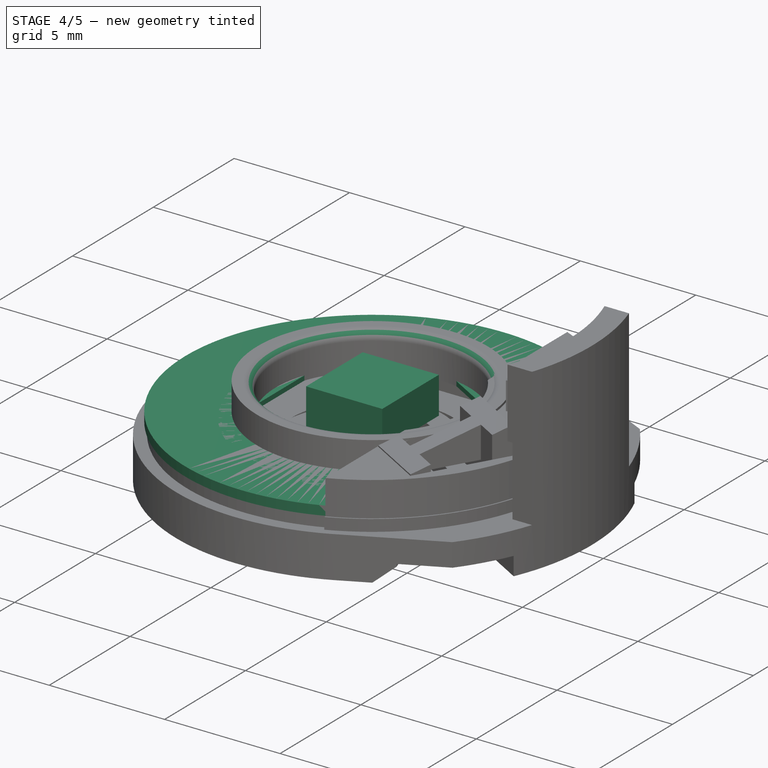
[diagram: stage 4 of 5 — iso view after this stage's code; geometry added in this stage tinted green]
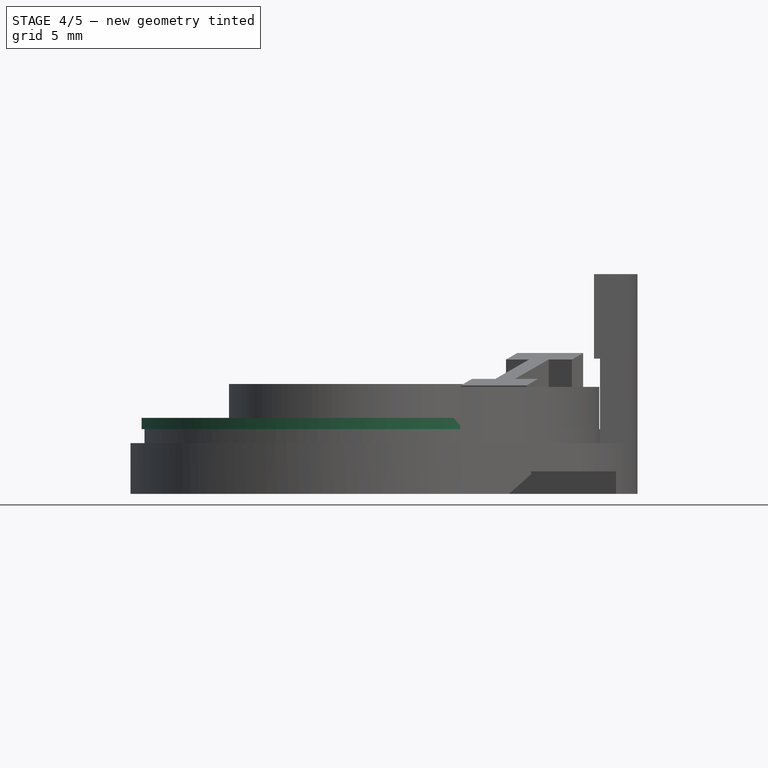
[diagram: stage 4 of 5 — front view after this stage's code; geometry added in this stage tinted green]
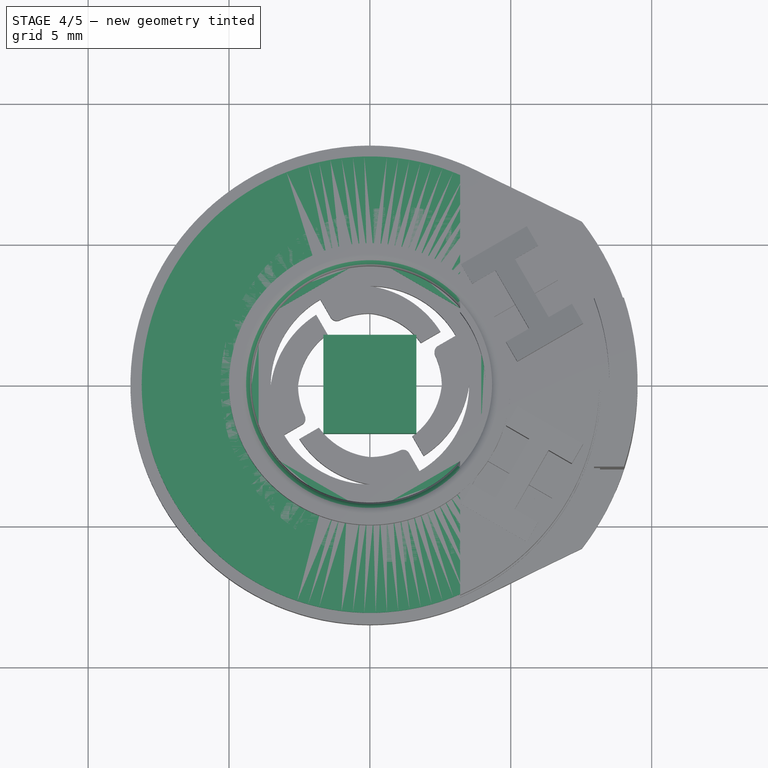
[diagram: stage 4 of 5 — top view after this stage's code; geometry added in this stage tinted green]
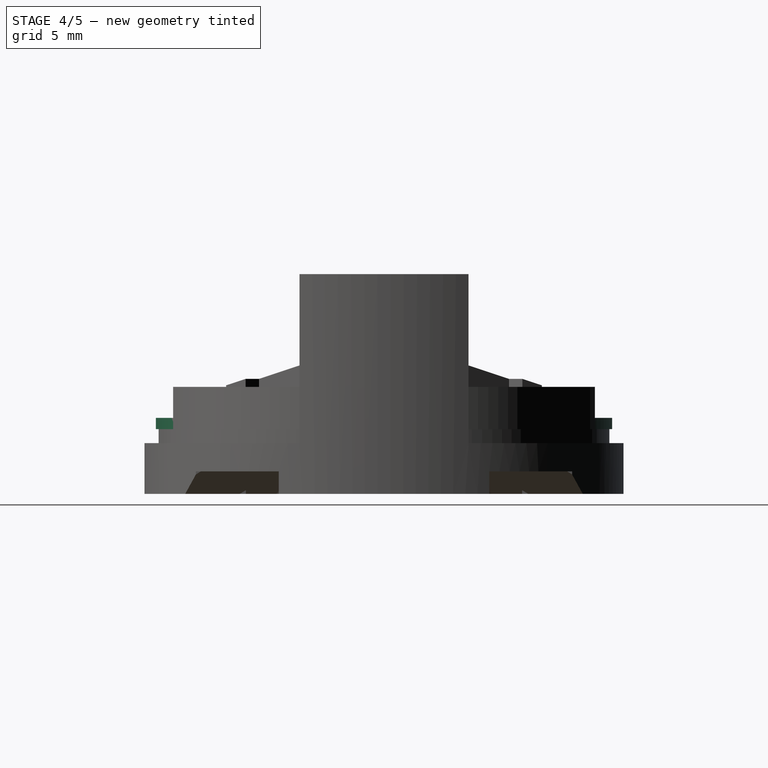
[diagram: stage 4 of 5 — right view after this stage's code; geometry added in this stage tinted green]
FEATURE [PartDesign::Body] Body  label="motorPart1"
  Group = -> [Sketch,Pad,Sketch017,Pad008,Fillet,Sketch018,Pad009,Fillet001,Sketch019,Pad010]
  Origin = -> Origin
  Tip = -> Pad010
FEATURE [Sketcher::SketchObject] Sketch020
  FullyConstrained = false
  MapMode = 5
  Support = -> [XY_Plane006]
  sketch-geometry (4):
    g0: LineSegment StartX=-1.65 StartY=1.75 StartZ=0 EndX=1.65 EndY=1.75 EndZ=0
    g1: LineSegment StartX=1.65 StartY=1.75 StartZ=0 EndX=1.65 EndY=-1.75 EndZ=0
    g2: LineSegment StartX=1.65 StartY=-1.75 StartZ=0 EndX=-1.65 EndY=-1.75 EndZ=0
    g3: LineSegment StartX=-1.65 StartY=-1.75 StartZ=0 EndX=-1.65 EndY=1.75 EndZ=0
  constraints (11):
    c: Coincident(g0,g1)
    c: Coincident(g1,g2)
    c: Coincident(g2,g3)
    c: Coincident(g3,g0)
    c: Horizontal(g0)
    c: Horizontal(g2)
    c: Vertical(g1)
    c: Vertical(g3)
    c: Symmetric(g0,g1,g-1)
    c: Distance(g0) = 3.3
    c: Distance(g1) = 3.5
FEATURE [PartDesign::Pad] Pad011
  Direction = (1,1,1)
  Length = 1.6
  Length2 = 100
  Profile = -> Sketch020
  Refine = true
  Type = 0
FEATURE [PartDesign::Body] Body006  label="sensor1"
  Group = -> [Sketch020,Pad011]
  Origin = -> Origin006
  Placement = pos=(5.41059,3.18199,1.53188) rot=(-0.460934,-0.123507,0.878798;0.5919rad)
  Tip = -> Pad011
FEATURE [Sketcher::SketchObject] Sketch021
  FullyConstrained = false
  MapMode = 5
  Support = -> [XY_Plane007]
  sketch-geometry (4):
    g0: LineSegment StartX=-1.65 StartY=1.75 StartZ=0 EndX=1.65 EndY=1.75 EndZ=0
    g1: LineSegment StartX=1.65 StartY=1.75 StartZ=0 EndX=1.65 EndY=-1.75 EndZ=0
    g2: LineSegment StartX=1.65 StartY=-1.75 StartZ=0 EndX=-1.65 EndY=-1.75 EndZ=0
    g3: LineSegment StartX=-1.65 StartY=-1.75 StartZ=0 EndX=-1.65 EndY=1.75 EndZ=0
  constraints (11):
    c: Coincident(g0,g1)
    c: Coincident(g1,g2)
    c: Coincident(g2,g3)
    c: Coincident(g3,g0)
    c: Horizontal(g0)
    c: Horizontal(g2)
    c: Vertical(g1)
    c: Vertical(g3)
    c: Symmetric(g0,g1,g-1)
    c: Distance(g0) = 3.3
    c: Distance(g1) = 3.5
FEATURE [PartDesign::Pad] Pad012
  Direction = (1,1,1)
  Length = 1.6
  Length2 = 100
  Profile = -> Sketch021
  Refine = true
  Type = 0
FEATURE [Sketcher::SketchObject] Sketch048
  FullyConstrained = true
  MapMode = 5
  Support = -> [XY_Plane010]
  sketch-geometry (2):
    g0: Circle CenterX=0 CenterY=0 CenterZ=0 NormalX=0 NormalY=0 NormalZ=1 AngleXU=0 Radius=4.8
    g1: Circle CenterX=0 CenterY=0 CenterZ=0 NormalX=0 NormalY=0 NormalZ=1 AngleXU=0 Radius=8.1
  constraints (4):
    c: Coincident(g0,g-1)
    c: Coincident(g1,g0)
    c: Diameter(g1) = 16.2
    c: Radius(g0) = 4.8
FEATURE [PartDesign::Pad] Pad026
  Direction = (1,1,1)
  Length = 0.4
  Length2 = 100
  Profile = -> Sketch048
  Refine = true
  Type = 0
FEATURE [Sketcher::SketchObject] Sketch074
  ExternalGeometry = -> [Pad027]
  FullyConstrained = true
  MapMode = 5
  Placement = pos=(0,0,0) rot=(1,0,0;3.14159rad)
  Support = -> [Pad027]
  sketch-geometry (3):
    g0: ArcOfCircle CenterX=0 CenterY=0 CenterZ=0 NormalX=0 NormalY=0 NormalZ=1 AngleXU=0 Radius=4.2 StartAngle=5.93642 EndAngle=6.62995
    g1: LineSegment StartX=3.95 StartY=1.42741 StartZ=0 EndX=3.95 EndY=-1.42741 EndZ=0
    g2: LineSegment StartX=3.95 StartY=0 StartZ=0 EndX=4.2 EndY=0 EndZ=0
  constraints (10):
    c: Coincident(g1,g0)
    c: Coincident(g1,g0)
    c: Vertical(g1)
    c: PointOnObject(g2,g1)
    c: PointOnObject(g2,g0)
    c: PointOnObject(g2,g-1)
    c: Horizontal(g2)
    c: Distance(g2) = 0.25
    c: Equal(g0,g-3)
    c: Coincident(g-3,g0)
FEATURE [PartDesign::Pad] Pad037
  BaseFeature = -> Pad027
  Direction = (0,0,-1)
  Length = 0.2
  Length2 = 10
  Profile = -> Sketch074
  ReferenceAxis = -> Sketch074 [N_Axis]
  Reversed = true
  Type = 0
FEATURE [PartDesign::PolarPattern] PolarPattern
  Angle = 360
  Axis = -> Sketch074 [N_Axis]
  BaseFeature = -> Pad037
  Occurrences = 6
  Originals = -> [Pad037]
FEATURE [PartDesign::Fillet] Fillet002
  Base = -> PolarPattern [Edge37]
  BaseFeature = -> PolarPattern
  Radius = 0.4
  SupportTransform = false
  UseAllEdges = false
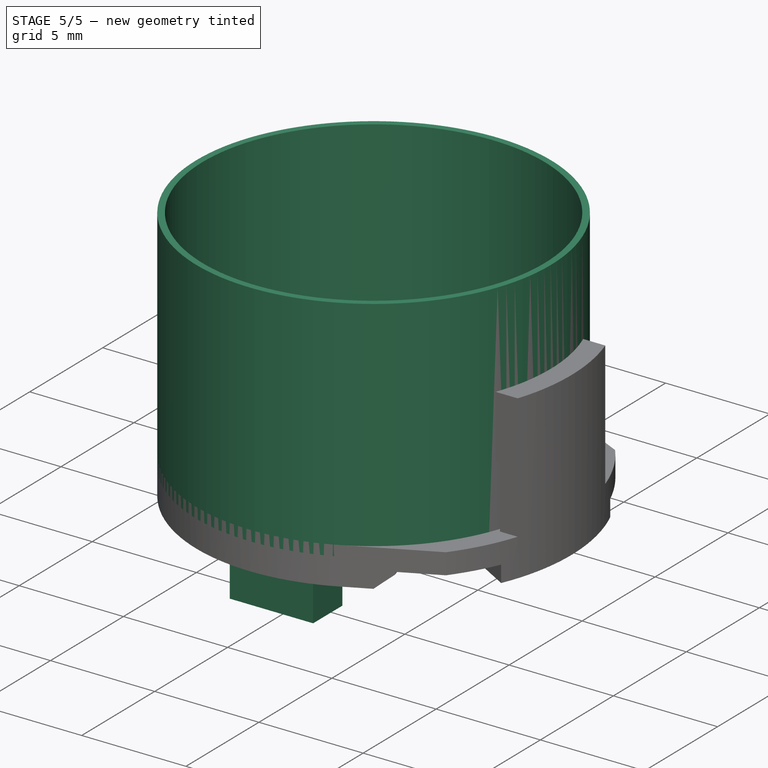
[diagram: stage 5 of 5 — iso view after this stage's code; geometry added in this stage tinted green]
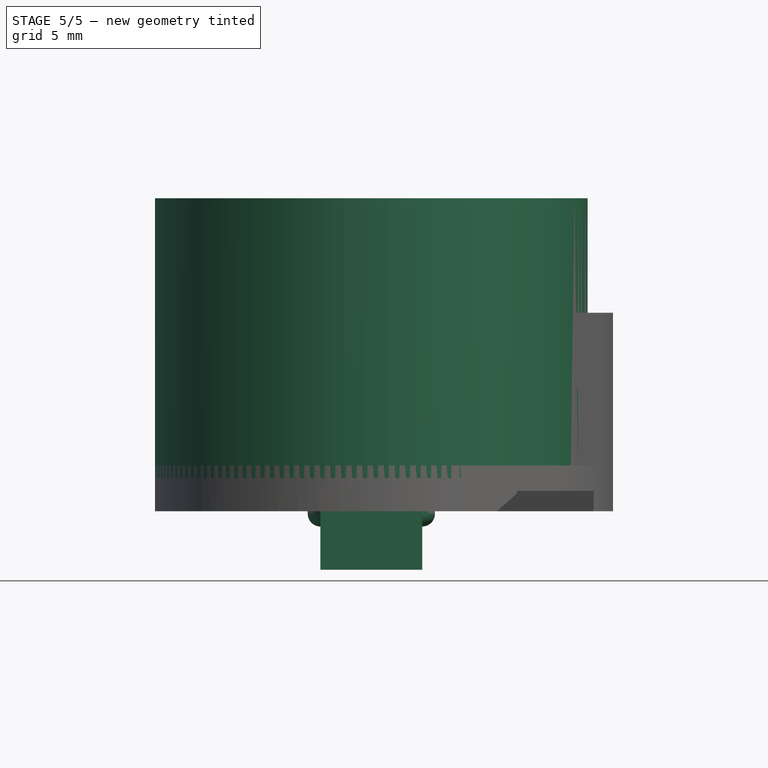
[diagram: stage 5 of 5 — front view after this stage's code; geometry added in this stage tinted green]
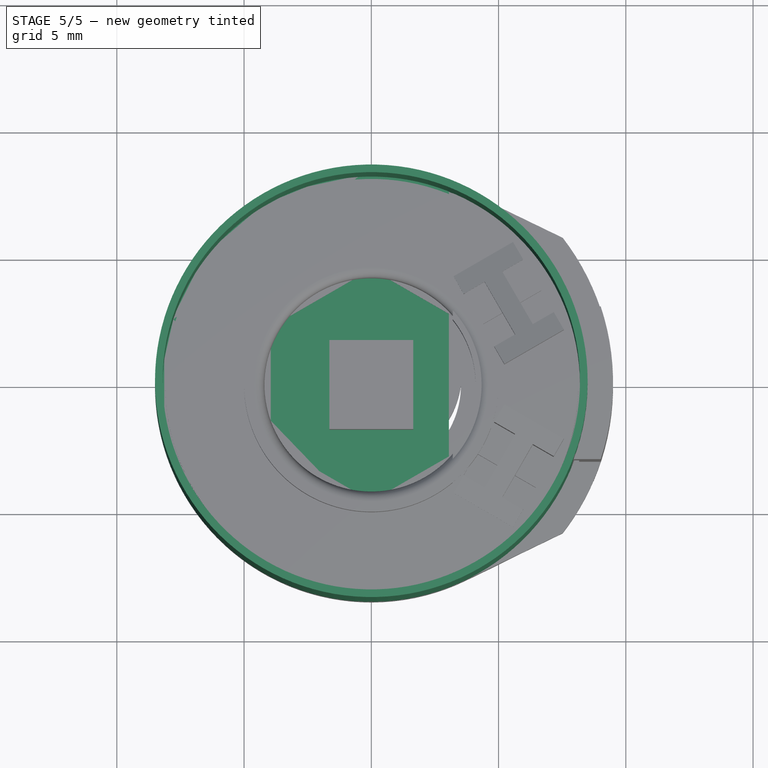
[diagram: stage 5 of 5 — top view after this stage's code; geometry added in this stage tinted green]
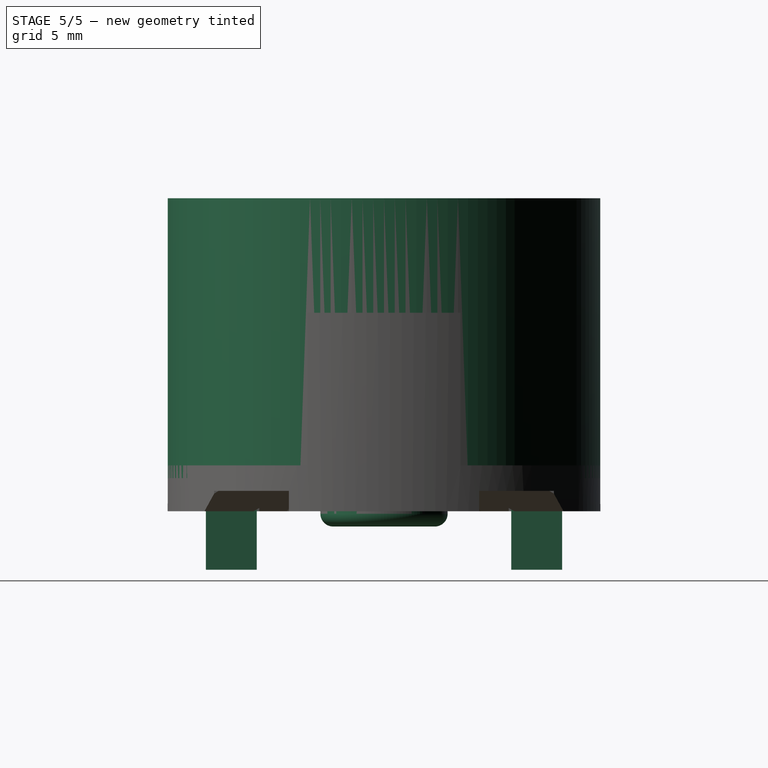
[diagram: stage 5 of 5 — right view after this stage's code; geometry added in this stage tinted green]
FEATURE [Sketcher::SketchObject] Sketch
  FullyConstrained = false
  MapMode = 5
  Support = -> [XY_Plane]
  sketch-geometry (3):
    g0: ArcOfCircle CenterX=0 CenterY=0 CenterZ=0 NormalX=0 NormalY=0 NormalZ=1 AngleXU=0 Radius=8.2 StartAngle=1.18969 EndAngle=5.0935
    g1: LineSegment StartX=3.05 StartY=7.61167 StartZ=0 EndX=3.05 EndY=-7.61167 EndZ=0
    g2: LineSegment StartX=3.05 StartY=0 StartZ=0 EndX=-8.2 EndY=0 EndZ=0
  constraints (10):
    c: Coincident(g0,g-1)
    c: Coincident(g1,g0)
    c: Coincident(g1,g0)
    c: Vertical(g1)
    c: Diameter(g0) = 16.4
    c: PointOnObject(g2,g1)
    c: PointOnObject(g2,g0)
    c: Horizontal(g2)
    c: PointOnObject(g2,g-1)
    c: Distance(g2) = 11.25
FEATURE [PartDesign::Pad] Pad
  Direction = (1,1,1)
  Length = 0.6
  Length2 = 100
  Profile = -> Sketch
  Refine = true
  Reversed = true
  Type = 0
FEATURE [Sketcher::SketchObject] Sketch016
  FullyConstrained = false
  MapMode = 5
  Support = -> [XY_Plane005]
  sketch-geometry (2):
    g0: Circle CenterX=0 CenterY=0 CenterZ=0 NormalX=0 NormalY=0 NormalZ=1 AngleXU=0 Radius=8.2
    g1: Circle CenterX=0 CenterY=0 CenterZ=0 NormalX=0 NormalY=0 NormalZ=1 AngleXU=0 Radius=8.5
  constraints (4):
    c: Coincident(g0,g-1)
    c: Coincident(g1,g0)
    c: Diameter(g0) = 16.4
    c: Diameter(g1) = 17
FEATURE [PartDesign::Pad] Pad007
  Direction = (1,1,1)
  Length = 10
  Length2 = 1
  Profile = -> Sketch016
  Refine = true
  Type = 4
FEATURE [PartDesign::Body] Body005  label="motorPart2"
  Group = -> [Sketch016,Pad007]
  Origin = -> Origin005
  Tip = -> Pad007
FEATURE [Sketcher::SketchObject] Sketch017
  ExternalGeometry = -> [Pad]
  FullyConstrained = false
  MapMode = 5
  Placement = pos=(0,0,-0.6) rot=(1,0,0;3.14159rad)
  Support = -> [Pad]
  sketch-geometry (2):
    g0: ArcOfCircle CenterX=0 CenterY=0 CenterZ=0 NormalX=0 NormalY=0 NormalZ=1 AngleXU=0 Radius=4.5 StartAngle=0.82606 EndAngle=5.45713
    g1: LineSegment StartX=3.05 StartY=3.3087 StartZ=0 EndX=3.05 EndY=-3.3087 EndZ=0
  constraints (6):
    c: Coincident(g0,g-1)
    c: Coincident(g1,g0)
    c: Coincident(g1,g0)
    c: Vertical(g1)
    c: PointOnObject(g0,g-3)
    c: Diameter(g0) = 9
FEATURE [PartDesign::Pad] Pad008
  BaseFeature = -> Pad
  Direction = (1,1,1)
  Length = 0.6
  Length2 = 100
  Profile = -> Sketch017
  Refine = true
  Type = 0
FEATURE [PartDesign::Fillet] Fillet
  Base = -> Pad008 [Edge11]
  BaseFeature = -> Pad008
  Radius = 0.5
  Refine = true
  SupportTransform = false
  UseAllEdges = false
FEATURE [Sketcher::SketchObject] Sketch018
  FullyConstrained = false
  MapMode = 5
  Placement = pos=(0,0,-1.2) rot=(1,0,0;3.14159rad)
  Support = -> [Fillet]
  sketch-geometry (1):
    g0: Circle CenterX=0 CenterY=0 CenterZ=0 NormalX=0 NormalY=0 NormalZ=1 AngleXU=0 Radius=2.5
  constraints (2):
    c: Coincident(g0,g-1)
    c: Diameter(g0) = 5
FEATURE [PartDesign::Pad] Pad009
  BaseFeature = -> Fillet
  Direction = (1,1,1)
  Length = 1
  Length2 = 100
  Offset = 2.3
  Profile = -> Sketch018
  Refine = true
  Type = 3
  UpToFace = -> Fillet [Face4]
FEATURE [PartDesign::Fillet] Fillet001
  Base = -> Pad009 [Edge18,Edge15]
  BaseFeature = -> Pad009
  Radius = 0.5
  Refine = true
  SupportTransform = false
  UseAllEdges = false
FEATURE [Sketcher::SketchObject] Sketch019
  FullyConstrained = false
  MapMode = 5
  Placement = pos=(0,0,-0.6) rot=(1,0,0;3.14159rad)
  Support = -> [Fillet001]
  sketch-geometry (8):
    g0: LineSegment StartX=-2 StartY=7 StartZ=0 EndX=2 EndY=7 EndZ=0
    g1: LineSegment StartX=2 StartY=7 StartZ=0 EndX=2 EndY=5 EndZ=0
    g2: LineSegment StartX=2 StartY=5 StartZ=0 EndX=-2 EndY=5 EndZ=0
    g3: LineSegment StartX=-2 StartY=5 StartZ=0 EndX=-2 EndY=7 EndZ=0
    g4: LineSegment StartX=-2 StartY=-5 StartZ=0 EndX=2 EndY=-5 EndZ=0
    g5: LineSegment StartX=2 StartY=-5 StartZ=0 EndX=2 EndY=-7 EndZ=0
    g6: LineSegment StartX=2 StartY=-7 StartZ=0 EndX=-2 EndY=-7 EndZ=0
    g7: LineSegment StartX=-2 StartY=-7 StartZ=0 EndX=-2 EndY=-5 EndZ=0
  constraints (21):
    c: Coincident(g0,g1)
    c: Coincident(g1,g2)
    c: Coincident(g2,g3)
    c: Coincident(g3,g0)
    c: Horizontal(g2)
    c: Vertical(g1)
    c: Vertical(g3)
    c: Symmetric(g0,g0,g-2)
    c: Distance(g0) = 4
    c: Distance(g3) = 2
    c: Coincident(g4,g5)
    c: Coincident(g5,g6)
    c: Coincident(g6,g7)
    c: Coincident(g7,g4)
    c: Horizontal(g4)
    c: Vertical(g5)
    c: Symmetric(g6,g5,g-2)
    c: Equal(g7,g3)
    c: Equal(g6,g0)
    c: Symmetric(g2,g4,g-1)
    c: Distance(g0,g5) = 14
FEATURE [PartDesign::Pad] Pad010
  BaseFeature = -> Fillet001
  Direction = (1,1,1)
  Length = 4
  Length2 = 100
  Profile = -> Sketch019
  Refine = true
  Type = 0
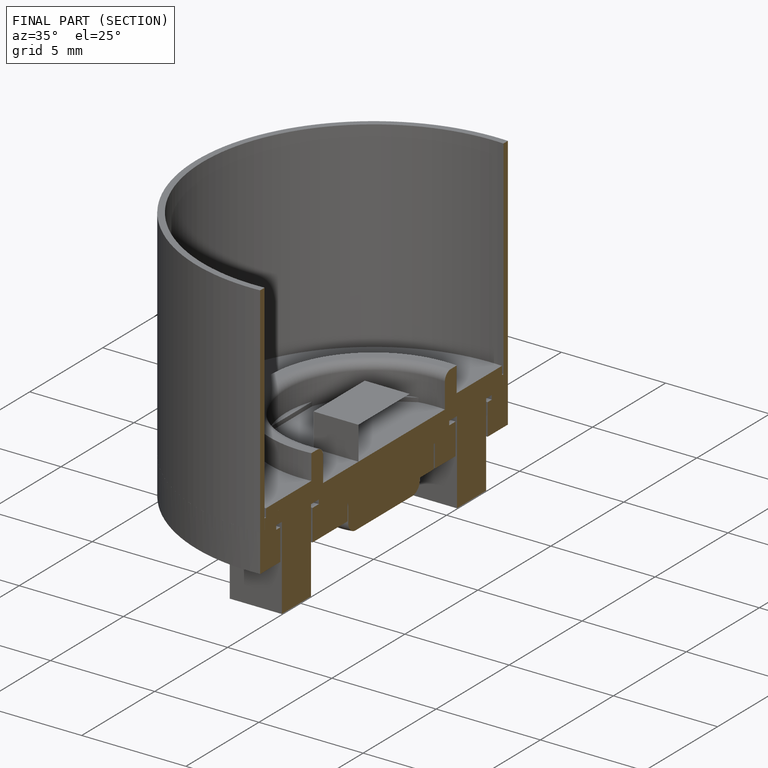
[diagram: finished part — half-section view (interior)]
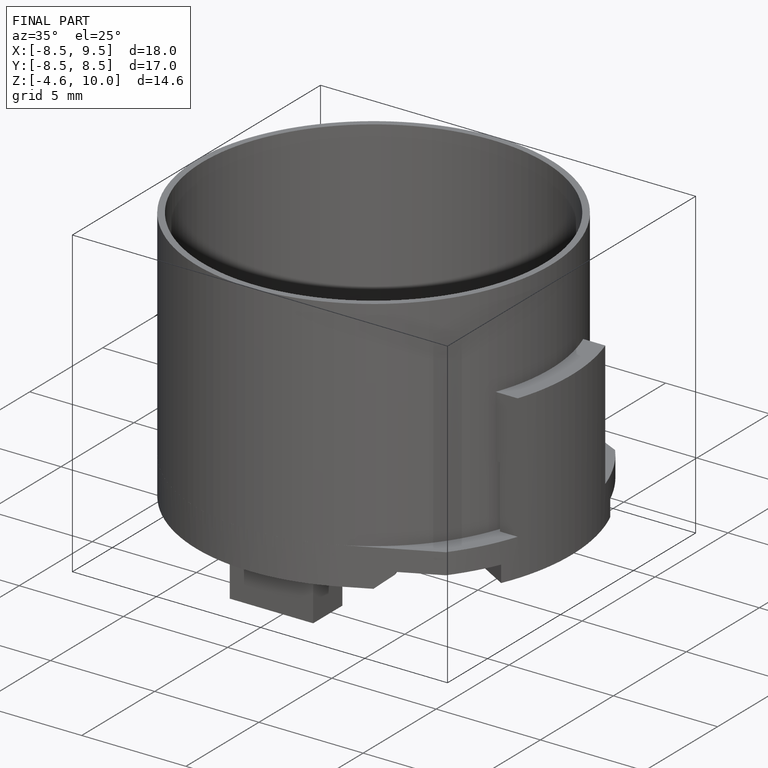
[diagram: finished part — iso view with bounding-box wireframe]
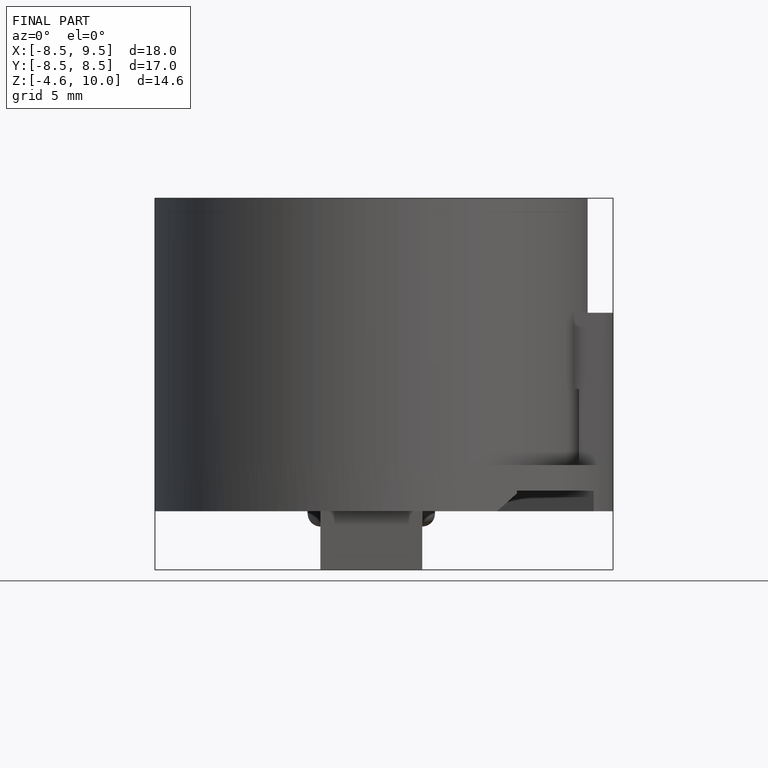
[diagram: finished part — front view with bounding-box wireframe]
